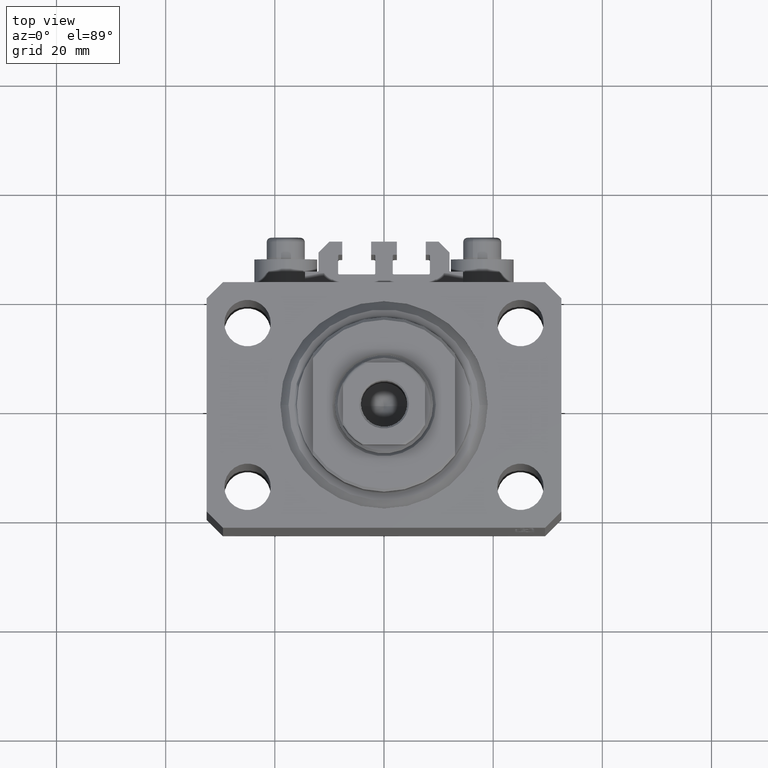
[diagram: clean part render]
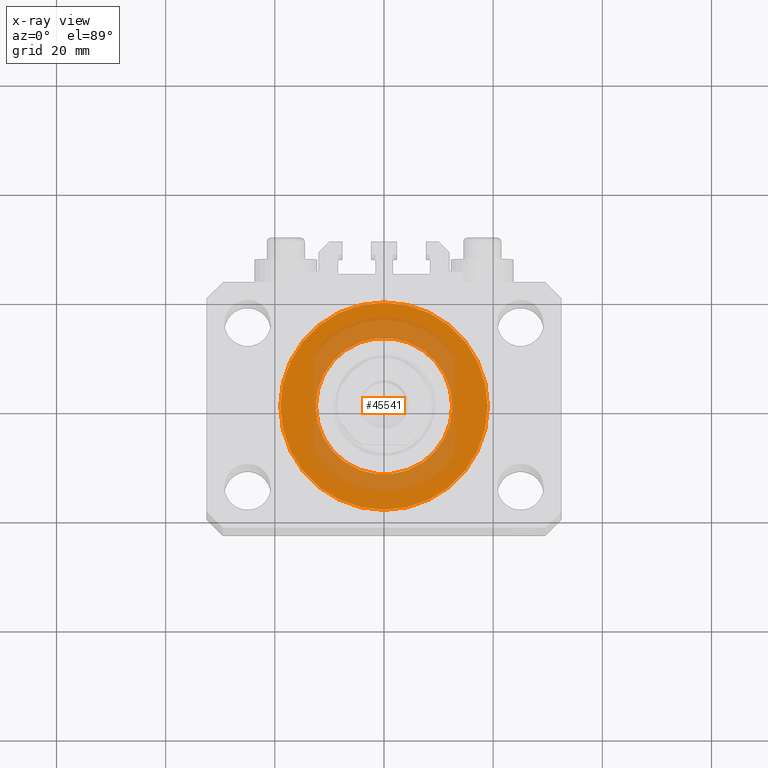
[diagram: x-ray — body ghosted, one internal face saturated and labeled with its STEP entity id]
A machine part, top view, then the same camera in x-ray: the body is ghosted and one INTERNAL B-rep face — a face not visible from any outside direction — is saturated and labeled: STEP entity #45541.
In plain terms, the highlighted planar face has unit normal (0, 0, 1).
Its self-contained STEP definition (entity closure, byte-faithful):
#2175 = FACE_BOUND ( 'NONE', #15015, .T. ) ;
#3586 = DIRECTION ( 'NONE',  ( 0.000000000000000000, 0.000000000000000000, 1.000000000000000000 ) ) ;
#3815 = CARTESIAN_POINT ( 'NONE',  ( 0.000000000000000000, 0.000000000000000000, -14.00000000000000000 ) ) ;
#6960 = AXIS2_PLACEMENT_3D ( 'NONE', #3815, #3586, #18200 ) ;
#8513 = CIRCLE ( 'NONE', #38339, 19.00000000000000000 ) ;
#8780 = CARTESIAN_POINT ( 'NONE',  ( 0.000000000000000000, 0.000000000000000000, -14.00000000000000000 ) ) ;
#9139 = EDGE_LOOP ( 'NONE', ( #43060, #24489 ) ) ;
#9260 = AXIS2_PLACEMENT_3D ( 'NONE', #37006, #22159, #14715 ) ;
#9602 = DIRECTION ( 'NONE',  ( 1.000000000000000000, 0.000000000000000000, 0.000000000000000000 ) ) ;
#12042 = ORIENTED_EDGE ( 'NONE', *, *, #24499, .F. ) ;
#14715 = DIRECTION ( 'NONE',  ( 1.000000000000000000, 0.000000000000000000, 0.000000000000000000 ) ) ;
#15015 = EDGE_LOOP ( 'NONE', ( #12042, #32271 ) ) ;
#16029 = CARTESIAN_POINT ( 'NONE',  ( -12.50000000000000000, 1.530808498934191521E-15, -13.99999999999999822 ) ) ;
#16670 = DIRECTION ( 'NONE',  ( 1.000000000000000000, 0.000000000000000000, 0.000000000000000000 ) ) ;
#17425 = CARTESIAN_POINT ( 'NONE',  ( 12.50000000000000000, 0.000000000000000000, -13.99999999999999822 ) ) ;
#18200 = DIRECTION ( 'NONE',  ( 1.000000000000000000, 0.000000000000000000, 0.000000000000000000 ) ) ;
#20150 = DIRECTION ( 'NONE',  ( 0.000000000000000000, 0.000000000000000000, 1.000000000000000000 ) ) ;
#20460 = VERTEX_POINT ( 'NONE', #30139 ) ;
#20631 = PLANE ( 'NONE',  #30022 ) ;
#21115 = CARTESIAN_POINT ( 'NONE',  ( 19.00000000000000000, 0.000000000000000000, -14.00000000000000000 ) ) ;
#21173 = VERTEX_POINT ( 'NONE', #21115 ) ;
#22159 = DIRECTION ( 'NONE',  ( 0.000000000000000000, 0.000000000000000000, 1.000000000000000000 ) ) ;
#22259 = CIRCLE ( 'NONE', #6960, 19.00000000000000000 ) ;
#23410 = DIRECTION ( 'NONE',  ( 0.000000000000000000, 0.000000000000000000, 1.000000000000000000 ) ) ;
#24274 = CIRCLE ( 'NONE', #26567, 12.50000000000000000 ) ;
#24489 = ORIENTED_EDGE ( 'NONE', *, *, #41746, .T. ) ;
#24499 = EDGE_CURVE ( 'NONE', #35341, #42698, #24274, .T. ) ;
#24943 = FACE_OUTER_BOUND ( 'NONE', #9139, .T. ) ;
#26567 = AXIS2_PLACEMENT_3D ( 'NONE', #42670, #31877, #9602 ) ;
#29929 = CIRCLE ( 'NONE', #9260, 12.50000000000000000 ) ;
#30022 = AXIS2_PLACEMENT_3D ( 'NONE', #35478, #20150, #46256 ) ;
#30139 = CARTESIAN_POINT ( 'NONE',  ( -19.00000000000000000, 2.326828918379970970E-15, -14.00000000000000000 ) ) ;
#31877 = DIRECTION ( 'NONE',  ( 0.000000000000000000, 0.000000000000000000, 1.000000000000000000 ) ) ;
#32271 = ORIENTED_EDGE ( 'NONE', *, *, #42022, .F. ) ;
#35341 = VERTEX_POINT ( 'NONE', #17425 ) ;
#35478 = CARTESIAN_POINT ( 'NONE',  ( 0.000000000000000000, 0.000000000000000000, -14.00000000000000000 ) ) ;
#37006 = CARTESIAN_POINT ( 'NONE',  ( 0.000000000000000000, 0.000000000000000000, -13.99999999999999822 ) ) ;
#37427 = EDGE_CURVE ( 'NONE', #21173, #20460, #8513, .T. ) ;
#38339 = AXIS2_PLACEMENT_3D ( 'NONE', #8780, #23410, #16670 ) ;
#41746 = EDGE_CURVE ( 'NONE', #20460, #21173, #22259, .T. ) ;
#42022 = EDGE_CURVE ( 'NONE', #42698, #35341, #29929, .T. ) ;
#42670 = CARTESIAN_POINT ( 'NONE',  ( 0.000000000000000000, 0.000000000000000000, -13.99999999999999822 ) ) ;
#42698 = VERTEX_POINT ( 'NONE', #16029 ) ;
#43060 = ORIENTED_EDGE ( 'NONE', *, *, #37427, .T. ) ;
#45541 = ADVANCED_FACE ( 'NONE', ( #2175, #24943 ), #20631, .T. ) ;
#46256 = DIRECTION ( 'NONE',  ( 1.000000000000000000, 0.000000000000000000, -0.000000000000000000 ) ) ;